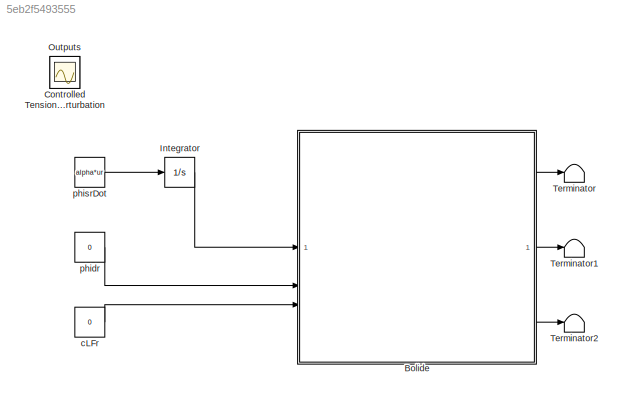
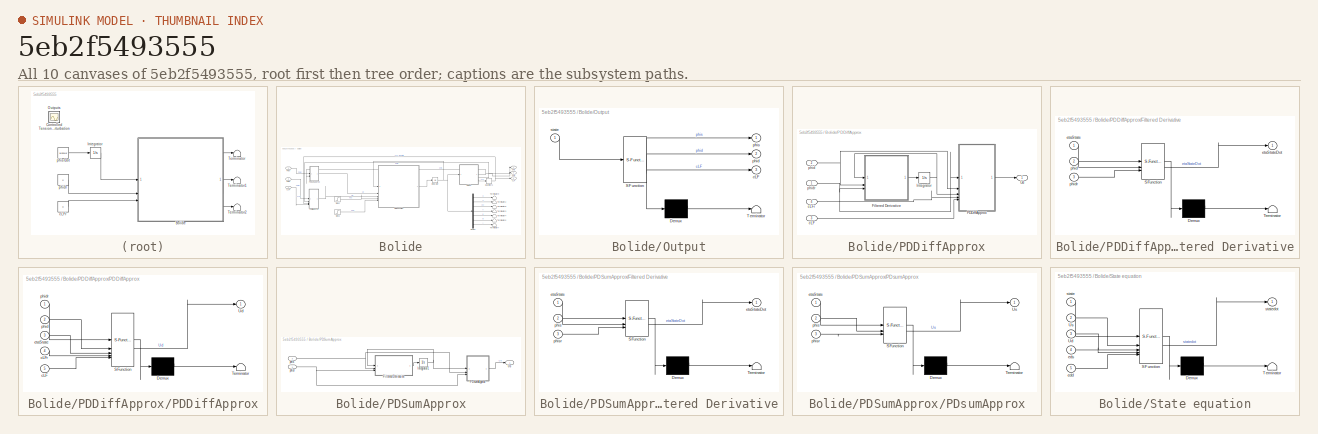
[diagram: thumbnail index - all 10 canvases of the model, root first then tree order]
MODEL slx_5eb2f5493555
KIND model
CONFIG AbsTol = auto
CONFIG EnableMultiTasking = off
CONFIG FixedStep = auto
CONFIG MaxStep = auto
CONFIG MinStep = auto
CONFIG RelTol = 1e-3
CONFIG SampleTimeConstraint = Unconstrained
CONFIG SolverName = VariableStepAuto
CONFIG StartTime = 0.0
CONFIG StopTime = 7
WORKSPACE source: MATLAB code (in-file)
WORKSPACE mw = 0.06
WORKSPACE mb = 0.894
WORKSPACE Ms = mb + 2*mw  (= 1.014)
WORKSPACE rho = 0.036
WORKSPACE l = 0.165
WORKSPACE d = 0.086
WORKSPACE L = 2.3e-3  (= 0.0023)
WORKSPACE R = 2.2
WORKSPACE k = 0.347
WORKSPACE Iwy = 1.6e-4  (= 0.00016)
WORKSPACE Ipsi = 3.12e-2  (= 0.0312)
WORKSPACE beta = (Ms + 2*Iwy/rho^2)  (= 1.26091358025)
WORKSPACE gamma = Ipsi + mb*d^2  (= 0.037812024)
WORKSPACE alpha = 2/rho  (= 55.5555555556)
WORKSPACE eta = l/rho  (= 4.58333333333)
WORKSPACE dCLF = 0.09
WORKSPACE ur = 0.3
WORKSPACE psir = 0
WORKSPACE Usbar = 2*k/rho*ur  (= 5.78333333333)
WORKSPACE Udbar = 0
WORKSPACE Urbar = Usbar/2  (= 2.89166666667)
WORKSPACE Ulbar = Usbar/2  (= 2.89166666667)
WORKSPACE pbar = 0
WORKSPACE ubar = ur  (= 0.3)
WORKSPACE psibar = psir  (= 0)
WORKSPACE vbar = 0
WORKSPACE Isbar = 0
WORKSPACE Idbar = 0
WORKSPACE ybar = 0
WORKSPACE code: statebar = [pbar; ubar; psibar; vbar; Isbar; Idbar; ybar];
WORKSPACE Qs = k/beta/rho/R  (= 3.47471325549)
WORKSPACE ASum = [0 1
WORKSPACE code: 0 Qs*(-2*k/rho)];
WORKSPACE BSum = [0
WORKSPACE code: Qs];
WORKSPACE CSum = [alpha 0]
WORKSPACE DSum = [0]
WORKSPACE sysSum = augstate(ss(ASum,BSum,CSum,DSum))
WORKSPACE code: set(sysSum,'InputName',{'dUs'},'OutputName',{'dphis','dp','du'});
WORKSPACE b1 = 1/gamma*mb*d*ubar  (= 0.609996439228)
WORKSPACE b2 = 1/gamma*l*k/2/rho/R  (= 9.55934898733)
WORKSPACE ADif = [0 1 0
WORKSPACE code: 0 (b1 + b2*(-k*l/rho)) 0;
WORKSPACE code: ubar 0 0];
WORKSPACE BDif = [0
WORKSPACE code: b2;
WORKSPACE code: 0];
WORKSPACE CDif = [eta 0 0
WORKSPACE code: 0 0 1];
WORKSPACE DDif = [0
WORKSPACE code: 0];
WORKSPACE sysDif = augstate(ss(ADif,BDif,CDif,DDif))
WORKSPACE code: set(sysDif,'InputName',{'dUd'},'OutputName',{'dphid','dcLF','dpsi','dv', ...
WORKSPACE code: 'dy'});
WORKSPACE sumEig = sort(eig(ASum))
WORKSPACE w0 = 1*abs(sumEig(1))
WORKSPACE xi = 1/sqrt(2)
WORKSPACE h1 = w0^2/Qs/alpha
WORKSPACE h2 = 1/alpha*(-2*xi*w0/Qs + 2*k/rho)
WORKSPACE h3 = h1
WORKSPACE Tds = h2/h1
WORKSPACE ns = 150
WORKSPACE sigma = 15
WORKSPACE k1 = 1/b2/eta*sigma^2*sqrt(6)
WORKSPACE k2 = 1/b2/eta*(-sigma*sqrt(6) - b1 + b2*k*l/rho)
WORKSPACE k3 = k1
WORKSPACE k4 = sigma^3/ubar/b2  (= 1176.85838386)
WORKSPACE k5 = k4  (= 1176.85838386)
WORKSPACE difEigDesired = roots([1 sigma*sqrt(6) sigma^2*sqrt(6) sigma^3])
WORKSPACE PDdif = [tf([-k2 k3],1) tf([k5],1) tf([k2 -k1],1) tf([-k4],1)]
WORKSPACE Tdd = k2/k1
WORKSPACE nd = 150
WORKSPACE Md = -nd  (= -150)
WORKSPACE Nd = [nd 0 -nd 0]
WORKSPACE Pd = k1*Tdd*nd
WORKSPACE Qd = [k1*(1-Tdd*nd) k5 -k1*(1-Tdd*nd) -k5]
WORKSPACE delta_y = 0.03
WORKSPACE delta_psi = pi/2  (= 1.57079632679)
WORKSPACE code: statebar_perturb = [pbar; ubar; psibar; vbar; Isbar; Idbar; ybar + delta_y];
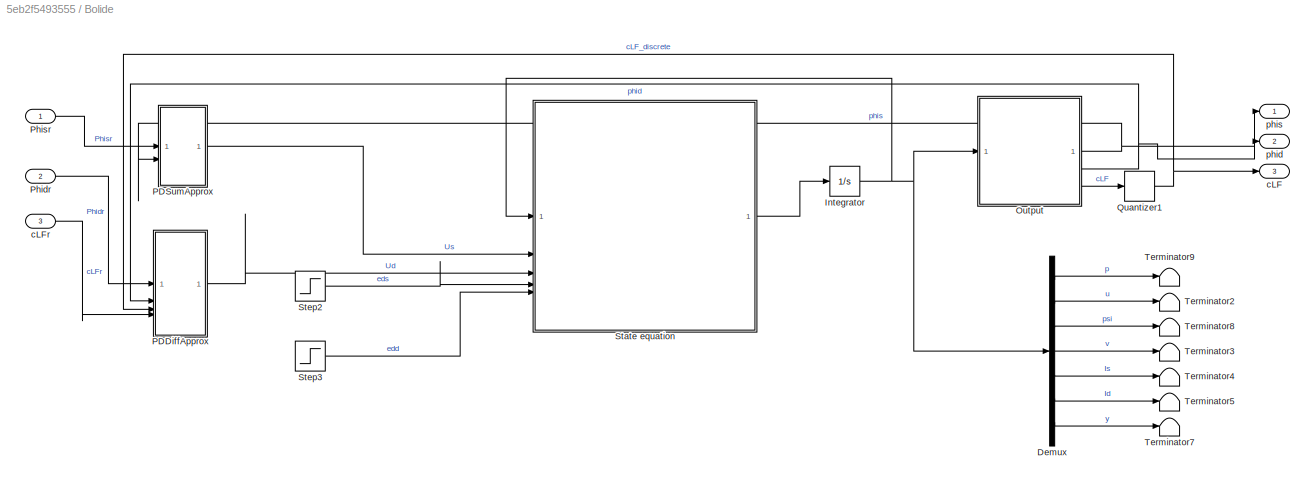
BLOCK [SubSystem] Bolide
BLOCK [Demux] Bolide/Demux
  Outputs = 7
BLOCK [Integrator] Bolide/Integrator
  InitialCondition = statebar_perturb
BLOCK [SubSystem] Bolide/Output
  ErrorFcn = Stateflow.Translate.translate
  PermitHierarchicalResolution = ExplicitOnly
  SFBlockType = MATLAB Function
  TreatAsAtomicUnit = on
BLOCK [Demux] Bolide/Output/ Demux 
  Outputs = 1
BLOCK [S-Function] Bolide/Output/ SFunction 
  EnableBusSupport = on
  FunctionName = sf_sfun
  Parameters = alpha,eta
  PortCounts = [1 4]
  SFcnIsStateOwnerBlock = off
  SFunctionDeploymentMode = off
  Tag = Stateflow S-Function 4
BLOCK [Terminator] Bolide/Output/ Terminator 
BLOCK [Outport] Bolide/Output/cLF
  Port = 3
BLOCK [Outport] Bolide/Output/phid
  Port = 2
BLOCK [Outport] Bolide/Output/phis
BLOCK [Inport] Bolide/Output/state
BLOCK [SubSystem] Bolide/PDDiffApprox
BLOCK [SubSystem] Bolide/PDDiffApprox/Filtered Derivative
  ErrorFcn = Stateflow.Translate.translate
  PermitHierarchicalResolution = ExplicitOnly
  SFBlockType = MATLAB Function
  TreatAsAtomicUnit = on
BLOCK [Demux] Bolide/PDDiffApprox/Filtered Derivative/ Demux 
  Outputs = 1
BLOCK [S-Function] Bolide/PDDiffApprox/Filtered Derivative/ SFunction 
  EnableBusSupport = on
  FunctionName = sf_sfun
  Parameters = nd
  PortCounts = [3 2]
  SFcnIsStateOwnerBlock = off
  SFunctionDeploymentMode = off
  Tag = Stateflow S-Function 5
BLOCK [Terminator] Bolide/PDDiffApprox/Filtered Derivative/ Terminator 
BLOCK [Inport] Bolide/PDDiffApprox/Filtered Derivative/etaState
BLOCK [Outport] Bolide/PDDiffApprox/Filtered Derivative/etaStateDot
BLOCK [Inport] Bolide/PDDiffApprox/Filtered Derivative/phid
  Port = 2
BLOCK [Inport] Bolide/PDDiffApprox/Filtered Derivative/phidr
  Port = 3
BLOCK [Integrator] Bolide/PDDiffApprox/Integrator
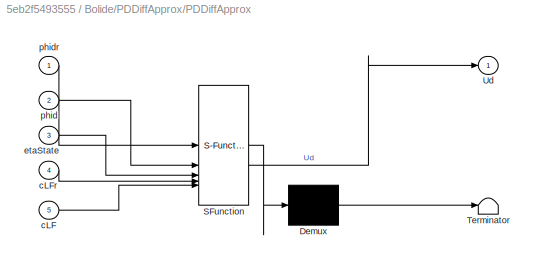
BLOCK [SubSystem] Bolide/PDDiffApprox/PDDiffApprox
  ErrorFcn = Stateflow.Translate.translate
  PermitHierarchicalResolution = ExplicitOnly
  SFBlockType = MATLAB Function
  TreatAsAtomicUnit = on
BLOCK [Demux] Bolide/PDDiffApprox/PDDiffApprox/ Demux 
  Outputs = 1
BLOCK [S-Function] Bolide/PDDiffApprox/PDDiffApprox/ SFunction 
  EnableBusSupport = on
  FunctionName = sf_sfun
  Parameters = Tdd,Udbar,k1,k5,nd
  PortCounts = [5 2]
  SFcnIsStateOwnerBlock = off
  SFunctionDeploymentMode = off
  Tag = Stateflow S-Function 6
BLOCK [Terminator] Bolide/PDDiffApprox/PDDiffApprox/ Terminator 
BLOCK [Outport] Bolide/PDDiffApprox/PDDiffApprox/Ud
BLOCK [Inport] Bolide/PDDiffApprox/PDDiffApprox/cLF
  Port = 5
BLOCK [Inport] Bolide/PDDiffApprox/PDDiffApprox/cLFr
  Port = 4
BLOCK [Inport] Bolide/PDDiffApprox/PDDiffApprox/etaState
  Port = 3
BLOCK [Inport] Bolide/PDDiffApprox/PDDiffApprox/phid
  Port = 2
BLOCK [Inport] Bolide/PDDiffApprox/PDDiffApprox/phidr
BLOCK [Outport] Bolide/PDDiffApprox/Ud
BLOCK [Inport] Bolide/PDDiffApprox/cLF
  Port = 3
BLOCK [Inport] Bolide/PDDiffApprox/cLFr
  Port = 4
BLOCK [Inport] Bolide/PDDiffApprox/phid
  Port = 2
BLOCK [Inport] Bolide/PDDiffApprox/phidr
BLOCK [SubSystem] Bolide/PDSumApprox
BLOCK [SubSystem] Bolide/PDSumApprox/Filtered Derivative
  ErrorFcn = Stateflow.Translate.translate
  PermitHierarchicalResolution = ExplicitOnly
  SFBlockType = MATLAB Function
  TreatAsAtomicUnit = on
BLOCK [Demux] Bolide/PDSumApprox/Filtered Derivative/ Demux 
  Outputs = 1
BLOCK [S-Function] Bolide/PDSumApprox/Filtered Derivative/ SFunction 
  EnableBusSupport = on
  FunctionName = sf_sfun
  Parameters = ns
  PortCounts = [3 2]
  SFcnIsStateOwnerBlock = off
  SFunctionDeploymentMode = off
  Tag = Stateflow S-Function 1
BLOCK [Terminator] Bolide/PDSumApprox/Filtered Derivative/ Terminator 
BLOCK [Inport] Bolide/PDSumApprox/Filtered Derivative/etaState
BLOCK [Outport] Bolide/PDSumApprox/Filtered Derivative/etaStateDot
BLOCK [Inport] Bolide/PDSumApprox/Filtered Derivative/phis
  Port = 2
BLOCK [Inport] Bolide/PDSumApprox/Filtered Derivative/phisr
  Port = 3
BLOCK [Integrator] Bolide/PDSumApprox/Integrator1
BLOCK [SubSystem] Bolide/PDSumApprox/PDsumApprox
  ErrorFcn = Stateflow.Translate.translate
  PermitHierarchicalResolution = ExplicitOnly
  SFBlockType = MATLAB Function
  TreatAsAtomicUnit = on
BLOCK [Demux] Bolide/PDSumApprox/PDsumApprox/ Demux 
  Outputs = 1
BLOCK [S-Function] Bolide/PDSumApprox/PDsumApprox/ SFunction 
  EnableBusSupport = on
  FunctionName = sf_sfun
  Parameters = Tds,Usbar,h1,ns
  PortCounts = [3 2]
  SFcnIsStateOwnerBlock = off
  SFunctionDeploymentMode = off
  Tag = Stateflow S-Function 3
BLOCK [Terminator] Bolide/PDSumApprox/PDsumApprox/ Terminator 
BLOCK [Outport] Bolide/PDSumApprox/PDsumApprox/Us
BLOCK [Inport] Bolide/PDSumApprox/PDsumApprox/etaState
BLOCK [Inport] Bolide/PDSumApprox/PDsumApprox/phis
  Port = 2
BLOCK [Inport] Bolide/PDSumApprox/PDsumApprox/phisr
  Port = 3
BLOCK [Outport] Bolide/PDSumApprox/Us
BLOCK [Inport] Bolide/PDSumApprox/phis
  Port = 2
BLOCK [Inport] Bolide/PDSumApprox/phisr
BLOCK [Inport] Bolide/Phidr
  Port = 2
BLOCK [Inport] Bolide/Phisr
BLOCK [Quantizer] Bolide/Quantizer1
  QuantizationInterval = dCLF/7
BLOCK [SubSystem] Bolide/State equation
  ErrorFcn = Stateflow.Translate.translate
  PermitHierarchicalResolution = ExplicitOnly
  SFBlockType = MATLAB Function
  TreatAsAtomicUnit = on
BLOCK [Demux] Bolide/State equation/ Demux 
  Outputs = 1
BLOCK [S-Function] Bolide/State equation/ SFunction 
  EnableBusSupport = on
  FunctionName = sf_sfun
  Parameters = L,R,beta,d,gamma,k,l,mb,rho
  PortCounts = [5 2]
  SFcnIsStateOwnerBlock = off
  SFunctionDeploymentMode = off
  Tag = Stateflow S-Function 2
BLOCK [Terminator] Bolide/State equation/ Terminator 
BLOCK [Inport] Bolide/State equation/Ud
  Port = 3
BLOCK [Inport] Bolide/State equation/Us
  Port = 2
BLOCK [Inport] Bolide/State equation/edd
  Port = 5
BLOCK [Inport] Bolide/State equation/eds
  Port = 4
BLOCK [Inport] Bolide/State equation/state
BLOCK [Outport] Bolide/State equation/statedot
BLOCK [Step] Bolide/Step2
  After = 0
  SampleTime = 0
  Time = 5
BLOCK [Step] Bolide/Step3
  After = 0
  SampleTime = 0
  Time = 2
BLOCK [Terminator] Bolide/Terminator2
BLOCK [Terminator] Bolide/Terminator3
BLOCK [Terminator] Bolide/Terminator4
BLOCK [Terminator] Bolide/Terminator5
BLOCK [Terminator] Bolide/Terminator7
BLOCK [Terminator] Bolide/Terminator8
BLOCK [Terminator] Bolide/Terminator9
BLOCK [Outport] Bolide/cLF
  Port = 3
BLOCK [Inport] Bolide/cLFr
  Port = 3
BLOCK [Outport] Bolide/phid
  Port = 2
BLOCK [Outport] Bolide/phis
BLOCK [Scope] Controlled Tensions and Perturbation
  Floating = off
  IOType = viewer
  NumInputPorts = 1
  ScopeSpecificationString = Simulink.scopes.TimeScopeBlockCfg('CurrentConfiguration', extmgr.ConfigurationSet(extmgr.Configuration('Core','General UI',true),extmgr.Configuration('Core','Source UI',true),extmgr.Configuration('Sources','WiredSimulink',true,'DataLoggingVariableName','ScopeData1'),extmgr.Configuration('Visuals','Time Domain',true,'SerializedDisplays',{struct('MinYLimReal','-9642.59693','MaxYLimReal','1494.34191'...<+2126ch>
BLOCK [Integrator] Integrator
BLOCK [Scope] Outputs
  Floating = off
  IOType = viewer
  NumInputPorts = 1
  ScopeSpecificationString = Simulink.scopes.TimeScopeBlockCfg('CurrentConfiguration', extmgr.ConfigurationSet(extmgr.Configuration('Core','General UI',true),extmgr.Configuration('Core','Source UI',true),extmgr.Configuration('Sources','WiredSimulink',true),extmgr.Configuration('Visuals','Time Domain',true,'SerializedDisplays',{struct('MinYLimReal','-60.44059','MaxYLimReal','543.96527','YLabelReal','','MinYLimMag','0.00000','M...<+2696ch>
BLOCK [Terminator] Terminator
BLOCK [Terminator] Terminator1
BLOCK [Terminator] Terminator2
BLOCK [Constant] cLFr
  Value = 0
BLOCK [Constant] phidr
  Value = 0
BLOCK [Constant] phisrDot
  Value = alpha*ur
LINE Bolide/Demux:1 -> Bolide/Terminator9:1
LINE Bolide/Demux:2 -> Bolide/Terminator2:1
LINE Bolide/Demux:3 -> Bolide/Terminator8:1
LINE Bolide/Demux:4 -> Bolide/Terminator3:1
LINE Bolide/Demux:5 -> Bolide/Terminator4:1
LINE Bolide/Demux:6 -> Bolide/Terminator5:1
LINE Bolide/Demux:7 -> Bolide/Terminator7:1
NET Bolide/Integrator:1 -> Bolide/Demux:1, Bolide/Output:1, Bolide/State equation:1
NET Bolide/Output:1 -> Bolide/PDSumApprox:2, Bolide/phis:1
NET Bolide/Output:2 -> Bolide/PDDiffApprox:2, Bolide/phid:1
LINE Bolide/Output:3 -> Bolide/Quantizer1:1
LINE Bolide/PDDiffApprox/Filtered Derivative:1 -> Bolide/PDDiffApprox/Integrator:1
NET Bolide/PDDiffApprox/Integrator:1 -> Bolide/PDDiffApprox/Filtered Derivative:1, Bolide/PDDiffApprox/PDDiffApprox:3
LINE Bolide/PDDiffApprox/PDDiffApprox:1 -> Bolide/PDDiffApprox/Ud:1
LINE Bolide/PDDiffApprox/cLF:1 -> Bolide/PDDiffApprox/PDDiffApprox:5
LINE Bolide/PDDiffApprox/cLFr:1 -> Bolide/PDDiffApprox/PDDiffApprox:4
NET Bolide/PDDiffApprox/phid:1 -> Bolide/PDDiffApprox/Filtered Derivative:2, Bolide/PDDiffApprox/PDDiffApprox:2
NET Bolide/PDDiffApprox/phidr:1 -> Bolide/PDDiffApprox/Filtered Derivative:3, Bolide/PDDiffApprox/PDDiffApprox:1
LINE Bolide/PDDiffApprox:1 -> Bolide/State equation:3
LINE Bolide/PDSumApprox/Filtered Derivative:1 -> Bolide/PDSumApprox/Integrator1:1
NET Bolide/PDSumApprox/Integrator1:1 -> Bolide/PDSumApprox/Filtered Derivative:1, Bolide/PDSumApprox/PDsumApprox:1
LINE Bolide/PDSumApprox/PDsumApprox:1 -> Bolide/PDSumApprox/Us:1
NET Bolide/PDSumApprox/phis:1 -> Bolide/PDSumApprox/Filtered Derivative:2, Bolide/PDSumApprox/PDsumApprox:2
NET Bolide/PDSumApprox/phisr:1 -> Bolide/PDSumApprox/Filtered Derivative:3, Bolide/PDSumApprox/PDsumApprox:3
LINE Bolide/PDSumApprox:1 -> Bolide/State equation:2
LINE Bolide/Phidr:1 -> Bolide/PDDiffApprox:1
LINE Bolide/Phisr:1 -> Bolide/PDSumApprox:1
NET Bolide/Quantizer1:1 -> Bolide/PDDiffApprox:3, Bolide/cLF:1
LINE Bolide/State equation:1 -> Bolide/Integrator:1
LINE Bolide/Step2:1 -> Bolide/State equation:4
LINE Bolide/Step3:1 -> Bolide/State equation:5
LINE Bolide/cLFr:1 -> Bolide/PDDiffApprox:4
LINE Bolide:1 -> Terminator:1
LINE Bolide:2 -> Terminator1:1
LINE Bolide:3 -> Terminator2:1
LINE Integrator:1 -> Bolide:1
LINE cLFr:1 -> Bolide:3
LINE phidr:1 -> Bolide:2
LINE phisrDot:1 -> Integrator:1
note: NET lines group one-source signal fan-out (src -> all destinations, sorted); 1:1 wires keep LINE
CHART Bolide/PDSumApprox/Filtered Derivative states=1 transitions=1
  STATE_LABEL 'eML_blk_kernel()'
  STATE_LABEL 'SCRIPT:\nfunction etaStateDot = fcn(etaState,phis,phisr,ns)\ndeltaPhisr = (phisr - phis);\netaStateDot = ns*(deltaPhisr - etaState);\n'
CHART Bolide/State equation states=1 transitions=1
  STATE_LABEL 'eML_blk_kernel()'
  STATE_LABEL 'SCRIPT:\nfunction statedot = fcn(state, Us, Ud, eds, edd, beta, gamma, rho, l, d, L, R, k, mb)\n% ed est l\'entrée de perturbation, != d (distance AC)\n% Model parameters defined in "Model Explorer/Matlab Code"\n\np = state(1); % intégrale temporelle de u, distance parcourue\nu = state(2);\npsi = state(3);\nv = state(4); % psidot\nIs = state(5); % Intensité à gauche\nId = state(6);\ny = state(7); % abscisse p...<+407ch>'
CHART Bolide/PDSumApprox/PDsumApprox states=1 transitions=1
  STATE_LABEL 'eML_blk_kernel()'
  STATE_LABEL 'SCRIPT:\nfunction Us = fcn(etaState,phis,phisr,h1,Tds,ns,Usbar)\ndeltaPhis = phisr - phis;\nUs = Usbar + h1*(1 - Tds*ns)*deltaPhis + h1*Tds*ns*etaState;\n'
CHART Bolide/Output states=1 transitions=1
  STATE_LABEL 'eML_blk_kernel()'
  STATE_LABEL 'SCRIPT:\nfunction [phis, phid, cLF] = fcn(state,alpha,eta)\n% Sorties mesurées\n\np = state(1);\npsi = state(3);\ny = state(7);\n\nphis = alpha*p;\nphid = eta*psi;\ncLF = y;\n\n\n\n'
CHART Bolide/PDDiffApprox/Filtered Derivative states=1 transitions=1
  STATE_LABEL 'eML_blk_kernel()'
  STATE_LABEL 'SCRIPT:\nfunction etaStateDot = fcn(etaState,phid,phidr,nd)\ndeltaPhid = (phidr - phid);\netaStateDot = nd*(deltaPhid - etaState);\n'
CHART Bolide/PDDiffApprox/PDDiffApprox states=1 transitions=1
  STATE_LABEL 'eML_blk_kernel()'
  STATE_LABEL 'SCRIPT:\nfunction Ud = fcn(nd,phidr,phid,etaState,cLFr,cLF,k1,k5,Tdd,Udbar)\ndeltaPhid = phidr - phid;\ndeltaCLF = cLFr - cLF;\nUd = Udbar + k1*(1 - Tdd*nd)*deltaPhid + k1*Tdd*nd*etaState + k5*deltaCLF;\n'
CHART  states=0 transitions=0
CHART  states=0 transitions=0
CHART  states=0 transitions=0
CHART  states=0 transitions=0
CHART  states=0 transitions=0
CHART  states=0 transitions=0
